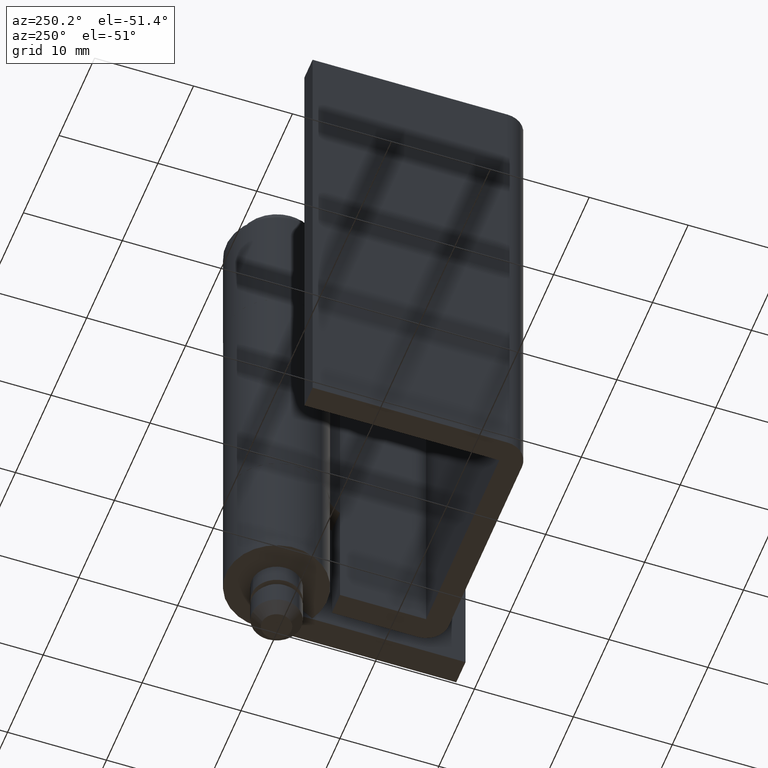
[diagram: clean part render]
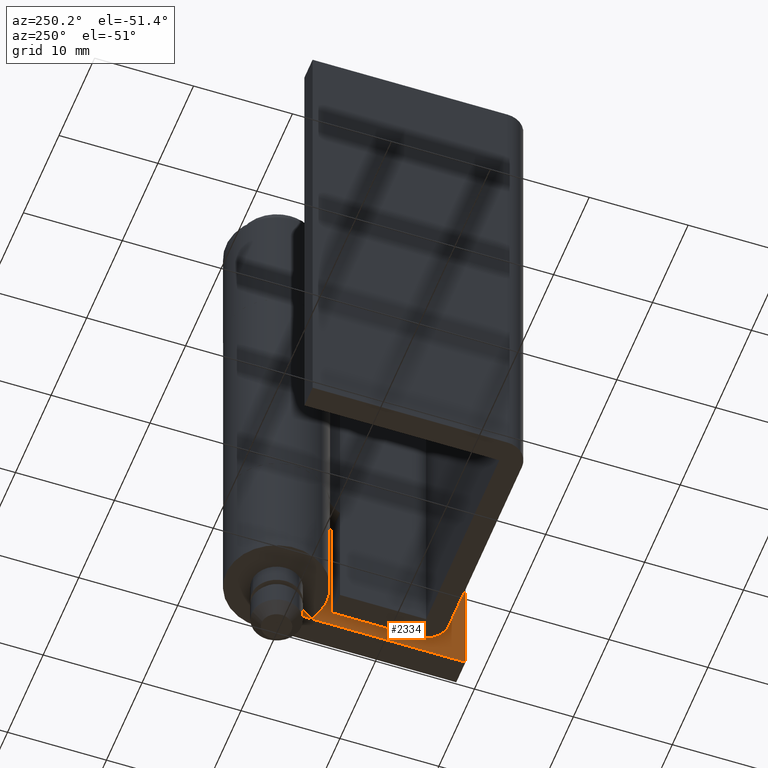
[diagram: same view with one face highlighted and labeled with its STEP entity id]
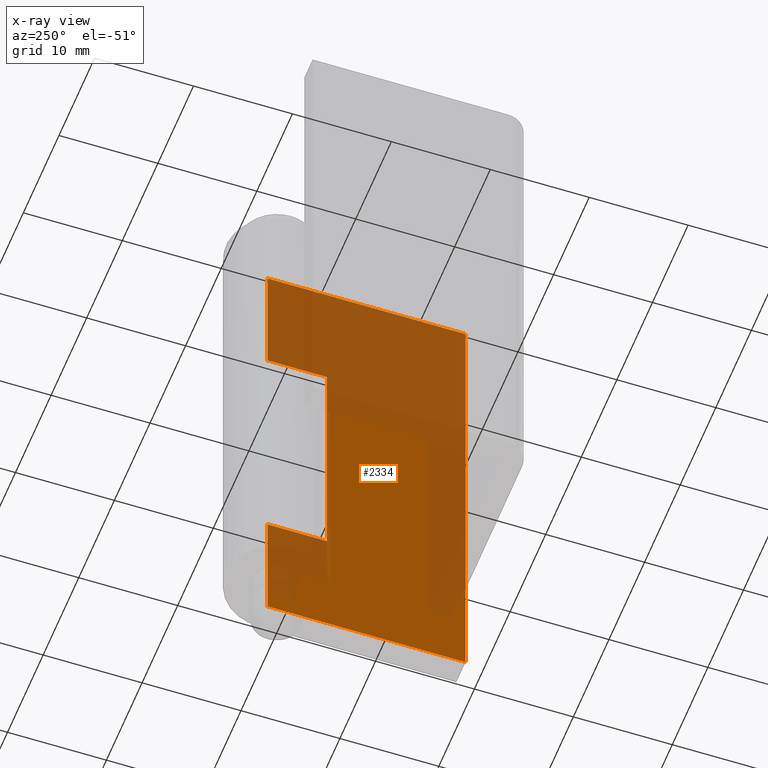
[diagram: x-ray of the same camera — body ghosted, the highlighted face saturated]
A machine part, auxiliary view. The second image highlights one B-rep face of the part: STEP entity #2334.
The next image is the same camera in x-ray: the body ghosted, the highlighted face saturated — about 57% of this face is hidden behind the body in this view.
In plain terms, the highlighted face is a freeform B-spline surface patch.
Its self-contained STEP definition (entity closure, byte-faithful):
#1792=CARTESIAN_POINT('',(2.500000000000000,0.0,43.500000000000000));
#1793=VERTEX_POINT('',#1792);
#1850=CARTESIAN_POINT('',(2.499999999999945,-6.0,43.500000000000000));
#1851=VERTEX_POINT('',#1850);
#1857=CARTESIAN_POINT('',(2.500000000000000,0.0,43.500000000000000));
#1858=CARTESIAN_POINT('',(2.499999999999945,-6.0,43.500000000000000));
#1859=QUASI_UNIFORM_CURVE('',1,(#1857,#1858),.UNSPECIFIED.,.F.,.U.);
#1860=EDGE_CURVE('',#1793,#1851,#1859,.T.);
#1878=CARTESIAN_POINT('',(2.499999999999945,-6.0,18.500000000000000));
#1879=VERTEX_POINT('',#1878);
#1885=CARTESIAN_POINT('',(2.499999999999945,-6.0,43.500000000000000));
#1886=CARTESIAN_POINT('',(2.499999999999945,-6.0,18.500000000000000));
#1887=QUASI_UNIFORM_CURVE('',1,(#1885,#1886),.UNSPECIFIED.,.F.,.U.);
#1888=EDGE_CURVE('',#1851,#1879,#1887,.T.);
#1941=CARTESIAN_POINT('',(2.500000000000000,0.0,18.500000000000000));
#1942=VERTEX_POINT('',#1941);
#1962=CARTESIAN_POINT('',(2.499999999999945,-6.0,18.500000000000000));
#1963=CARTESIAN_POINT('',(2.500000000000000,0.0,18.500000000000000));
#1964=QUASI_UNIFORM_CURVE('',1,(#1962,#1963),.UNSPECIFIED.,.F.,.U.);
#1965=EDGE_CURVE('',#1879,#1942,#1964,.T.);
#1984=CARTESIAN_POINT('',(2.500000000000000,-20.0,6.0));
#1985=VERTEX_POINT('',#1984);
#1991=CARTESIAN_POINT('',(2.500000000000000,0.0,6.0));
#1992=VERTEX_POINT('',#1991);
#1993=CARTESIAN_POINT('',(2.500000000000000,-20.0,6.0));
#1994=CARTESIAN_POINT('',(2.500000000000000,0.0,6.0));
#1995=QUASI_UNIFORM_CURVE('',1,(#1993,#1994),.UNSPECIFIED.,.F.,.U.);
#1996=EDGE_CURVE('',#1985,#1992,#1995,.T.);
#2090=CARTESIAN_POINT('',(2.500000000000000,0.0,56.0));
#2091=VERTEX_POINT('',#2090);
#2111=CARTESIAN_POINT('',(2.500000000000000,-20.0,56.0));
#2112=VERTEX_POINT('',#2111);
#2113=CARTESIAN_POINT('',(2.500000000000000,-20.0,56.0));
#2114=CARTESIAN_POINT('',(2.500000000000000,0.0,56.0));
#2115=QUASI_UNIFORM_CURVE('',1,(#2113,#2114),.UNSPECIFIED.,.F.,.U.);
#2116=EDGE_CURVE('',#2112,#2091,#2115,.T.);
#2138=CARTESIAN_POINT('',(2.500000000000000,-20.0,56.0));
#2139=CARTESIAN_POINT('',(2.500000000000000,-20.0,6.0));
#2140=QUASI_UNIFORM_CURVE('',1,(#2138,#2139),.UNSPECIFIED.,.F.,.U.);
#2141=EDGE_CURVE('',#2112,#1985,#2140,.T.);
#2276=CARTESIAN_POINT('',(2.500000000000000,0.0,56.0));
#2277=CARTESIAN_POINT('',(2.500000000000000,0.0,43.500000000000000));
#2278=QUASI_UNIFORM_CURVE('',1,(#2276,#2277),.UNSPECIFIED.,.F.,.U.);
#2279=EDGE_CURVE('',#2091,#1793,#2278,.T.);
#2311=CARTESIAN_POINT('',(2.500000000000000,0.0,18.500000000000000));
#2312=CARTESIAN_POINT('',(2.500000000000000,0.0,6.0));
#2313=QUASI_UNIFORM_CURVE('',1,(#2311,#2312),.UNSPECIFIED.,.F.,.U.);
#2314=EDGE_CURVE('',#1942,#1992,#2313,.T.);
#2319=CARTESIAN_POINT('',(2.500000000000000,-20.998999961236120,3.502500096909702));
#2320=CARTESIAN_POINT('',(2.500000000000000,-20.998999961236120,58.497501244194822));
#2321=CARTESIAN_POINT('',(2.500000000000000,0.999000497677922,3.502500096909702));
#2322=CARTESIAN_POINT('',(2.500000000000000,0.999000497677922,58.497501244194822));
#2323=B_SPLINE_SURFACE_WITH_KNOTS('',1,1,((#2319,#2321),(#2320,#2322)),.UNSPECIFIED.,.F.,.F.,.U.,(2,2),(2,2),(0.0,54.995001147285123),(0.0,21.998000458914039),.UNSPECIFIED.);
#2324=ORIENTED_EDGE('',*,*,#1888,.T.);
#2325=ORIENTED_EDGE('',*,*,#1965,.T.);
#2326=ORIENTED_EDGE('',*,*,#2314,.T.);
#2327=ORIENTED_EDGE('',*,*,#1996,.F.);
#2328=ORIENTED_EDGE('',*,*,#2141,.F.);
#2329=ORIENTED_EDGE('',*,*,#2116,.T.);
#2330=ORIENTED_EDGE('',*,*,#2279,.T.);
#2331=ORIENTED_EDGE('',*,*,#1860,.T.);
#2332=EDGE_LOOP('',(#2324,#2325,#2326,#2327,#2328,#2329,#2330,#2331));
#2333=FACE_OUTER_BOUND('',#2332,.T.);
#2334=ADVANCED_FACE('',(#2333),#2323,.T.);